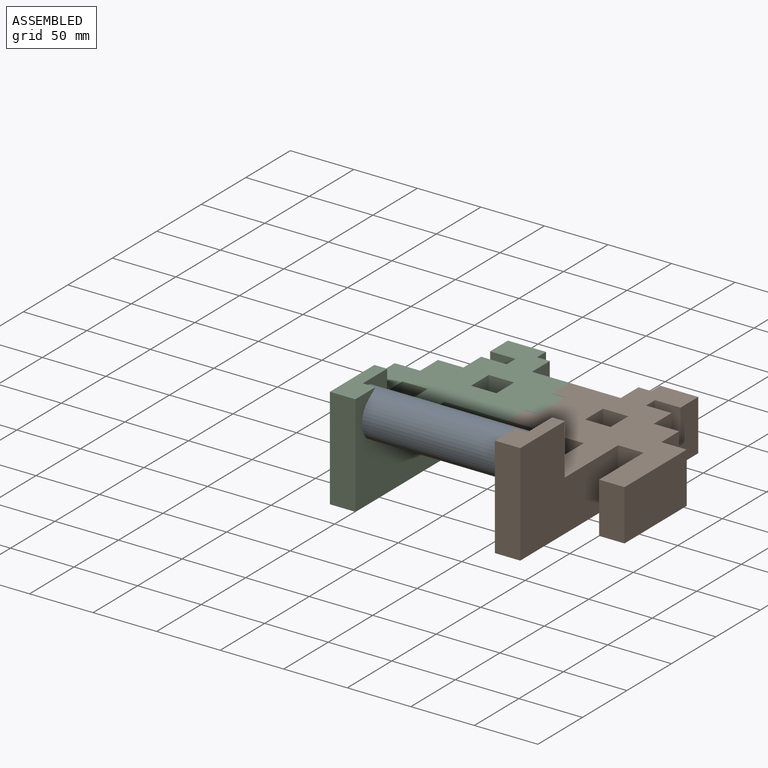
[diagram: assembled view]
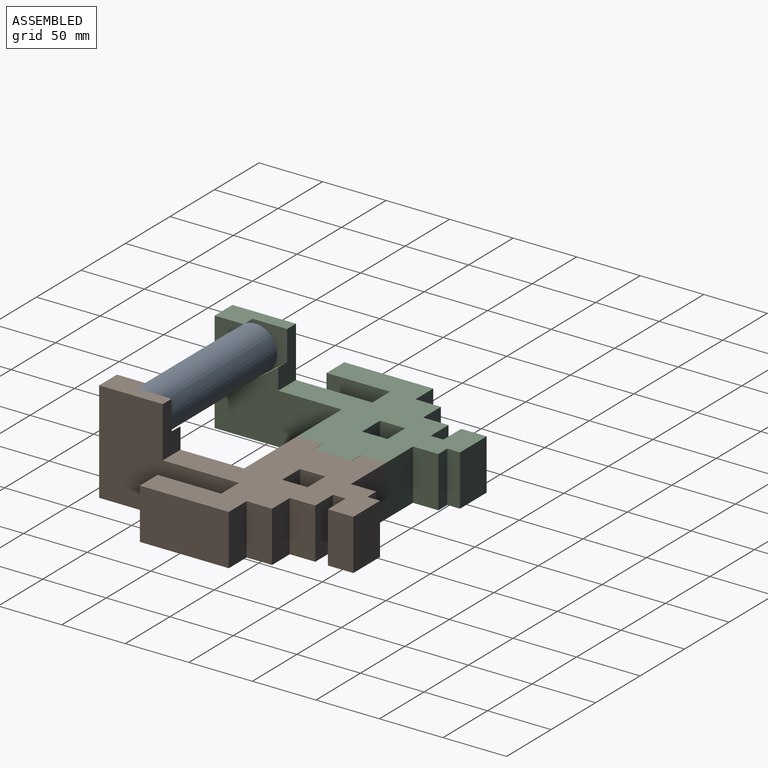
[diagram: assembled view, second angle]
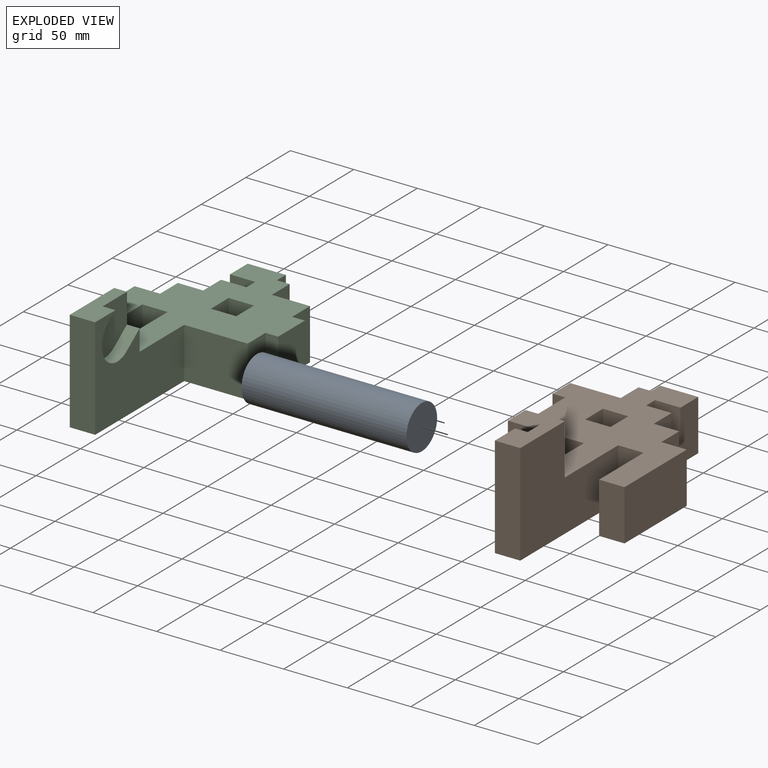
[diagram: exploded view]
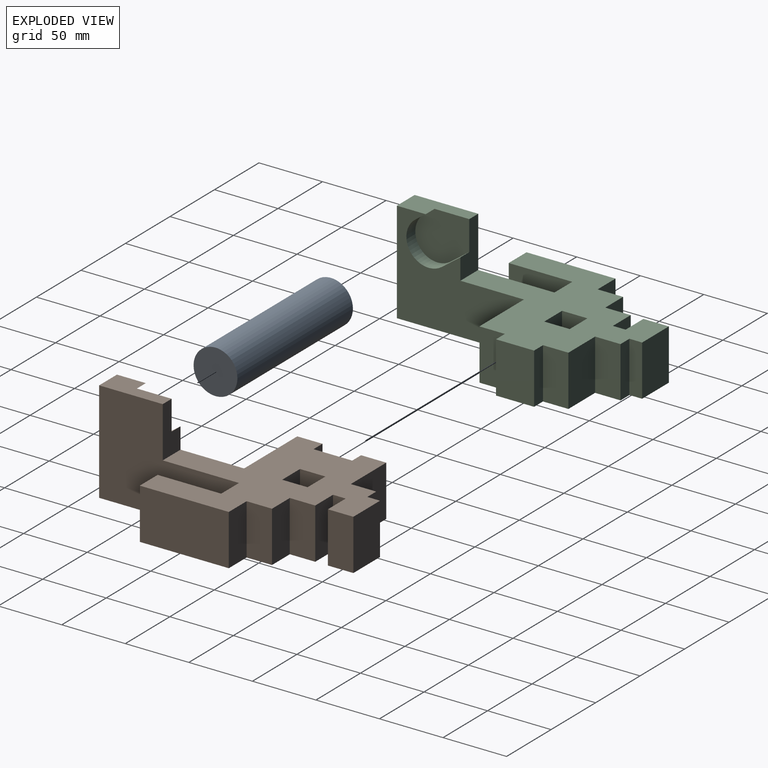
[diagram: exploded view, second angle]
ASSEMBLY  parts=3 mates=2
PART A: 3 faces, bbox 129.8x34.5x34.5 mm
  f0: cylinder r=17.25mm len=129.8mm, axis (-1,0,0), area 14068.4mm2, adj f1,f2
  f1: plane 34.5x34.5mm, normal (1,0,0), area 934.8mm2, adj f0
  f2: plane 34.5x34.5mm, normal (-1,0,0), area 934.8mm2, adj f0
PART B: 47 faces, bbox 119.8x200x80 mm
  f0: plane 200x119.8mm, normal (0,0,-1), area 9892.8mm2, adj f1,f4,f5,f6,f7,f8,f9,f10
  f1: plane 100x80mm, normal (-1,0,0), area 4707.4mm2, adj f0,f2,f3,f5,f22,f33,f34,f35
  f2: plane 50x20mm, normal (0,0,1), area 727mm2, adj f1,f22,f23,f33,f36,f37
  f3: plane 150x119.8mm, normal (0,0,1), area 8982mm2, adj f1,f4,f5,f6,f7,f8,f9,f10
  f4: plane 40x39.8mm, normal (0,1,0), area 1592mm2, adj f0,f3,f21,f31
  f5: plane 59.8x40mm, normal (0,-1,0), area 2392mm2, adj f0,f1,f3,f32
  f6: plane 40x20mm, normal (0,-1,0), area 800mm2, adj f0,f3,f7,f27
  f7: plane 40x20mm, normal (-1,0,0), area 800mm2, adj f0,f3,f6,f8
  f8: plane 40x20mm, normal (0,1,0), area 800mm2, adj f0,f3,f7,f27
  f9: plane 70x40mm, normal (1,0,0), area 2800mm2, adj f0,f3,f10,f26
  f10: plane 40x20mm, normal (0,1,0), area 800mm2, adj f0,f3,f9,f11
  f11: plane 40x20mm, normal (1,0,0), area 800mm2, adj f0,f3,f10,f12
  f12: plane 40x20mm, normal (0,1,0), area 800mm2, adj f0,f3,f11,f13
  f13: plane 40x20mm, normal (1,0,0), area 800mm2, adj f0,f3,f12,f14
  f14: plane 40x20mm, normal (0,1,0), area 800mm2, adj f0,f3,f13,f15
  f15: plane 40x10mm, normal (1,0,0), area 400mm2, adj f0,f3,f14,f16
  f16: plane 40x20mm, normal (0,-1,0), area 800mm2, adj f0,f3,f15,f17
  f17: plane 40x20mm, normal (1,0,0), area 800mm2, adj f0,f3,f16,f18
  f18: plane 40x30mm, normal (0,1,0), area 1200mm2, adj f0,f3,f17,f19
  f19: plane 40x10mm, normal (-1,0,0), area 400mm2, adj f0,f3,f18,f20
  f20: plane 40x10mm, normal (0,1,0), area 400mm2, adj f0,f3,f19,f21
  f21: plane 40x20mm, normal (-1,0,0), area 800mm2, adj f0,f3,f4,f20
  f22: plane 80x20mm, normal (0,-1,0), area 1600mm2, adj f0,f1,f2,f23
  f23: plane 110x80mm, normal (1,0,0), area 6400mm2, adj f0,f2,f3,f22,f24,f33
  f24: plane 40x20mm, normal (0,-1,0), area 800mm2, adj f0,f3,f23,f25
  f25: plane 50x40mm, normal (-1,0,0), area 2000mm2, adj f0,f3,f24,f26
  f26: plane 40x20mm, normal (0,-1,0), area 800mm2, adj f0,f3,f9,f25
  f27: plane 40x20mm, normal (1,0,0), area 800mm2, adj f0,f3,f6,f8
  f28: plane 40x10mm, normal (0,1,0), area 400mm2, adj f0,f3,f29,f32
  f29: plane 40x30.4mm, normal (-1,0,0), area 1216mm2, adj f0,f3,f28,f30
  f30: plane 40x10mm, normal (0,-1,0), area 400mm2, adj f0,f3,f29,f31
  f31: plane 40x19.8mm, normal (-1,0,0), area 792mm2, adj f0,f3,f4,f30
  f32: plane 40x19.8mm, normal (-1,0,0), area 792mm2, adj f0,f3,f5,f28
  f33: plane 40x20mm, normal (0,1,0), area 566.1mm2, adj f1,f2,f3,f23,f35,f37
  f34: cylinder r=17.5mm len=31.62mm, axis (1,0,0), area 549.8mm2, adj f1,f35,f36,f37
  f35: plane 14.67x10.73mm, normal (0,-0.59,0.81), area 181.7mm2, adj f1,f33,f34,f37
  f36: plane 10x8.03mm, normal (0,0.59,-0.81), area 99.5mm2, adj f1,f2,f34,f37
  f37: plane 42.5x37.5mm, normal (-1,0,0), area 1292.6mm2, adj f2,f33,f34,f35,f36
  f38: plane 8.54x2mm, normal (1,0,0), area 17.1mm2, adj f0,f39,f41,f43
  f39: cylinder r=2mm len=4mm, axis (0,0,-1), area 12.6mm2, adj f0,f38,f40,f43
  f40: plane 8.54x2mm, normal (-1,0,0), area 17.1mm2, adj f0,f39,f41,f43
  f41: cylinder r=4mm len=8mm, axis (0,0,-1), area 117.3mm2, adj f0,f38,f40,f42,f43,f44,f45
  f42: plane 20x8mm, normal (0,0,-1), area 146.3mm2, adj f41,f44,f45,f46
  f43: plane 16x8mm, normal (0,0,1), area 57mm2, adj f38,f39,f40,f41,f44,f45,f46
  f44: plane 12x6mm, normal (-1,0,0), area 72mm2, adj f41,f42,f43,f46
  f45: plane 12x6mm, normal (1,0,0), area 72mm2, adj f41,f42,f43,f46
  f46: cylinder r=4mm len=8mm, axis (0,0,1), area 75.4mm2, adj f42,f43,f44,f45
PART C: 47 faces, bbox 120x200x80 mm
  f0: plane 200x120mm, normal (0,0,-1), area 9810.8mm2, adj f3,f4,f5,f6,f7,f8,f9,f10
  f1: plane 50x20mm, normal (0,0,1), area 727mm2, adj f16,f17,f18,f33,f36,f37
  f2: plane 150x120mm, normal (0,0,1), area 8900mm2, adj f3,f4,f5,f6,f7,f8,f9,f10
  f3: plane 40x20mm, normal (0,1,0), area 800mm2, adj f0,f2,f4,f32
  f4: plane 40x20mm, normal (1,0,0), area 800mm2, adj f0,f2,f3,f5
  f5: plane 40x20mm, normal (0,-1,0), area 800mm2, adj f0,f2,f4,f32
  f6: plane 40x10mm, normal (-1,0,0), area 400mm2, adj f0,f2,f7,f31
  f7: plane 40x20mm, normal (0,1,0), area 800mm2, adj f0,f2,f6,f8
  f8: plane 40x20mm, normal (-1,0,0), area 800mm2, adj f0,f2,f7,f9
  f9: plane 40x20mm, normal (0,1,0), area 800mm2, adj f0,f2,f8,f10
  f10: plane 40x20mm, normal (-1,0,0), area 800mm2, adj f0,f2,f9,f11
  f11: plane 40x20mm, normal (0,1,0), area 800mm2, adj f0,f2,f10,f12
  f12: plane 70x40mm, normal (-1,0,0), area 2800mm2, adj f0,f2,f11,f13
  f13: plane 40x20mm, normal (0,-1,0), area 800mm2, adj f0,f2,f12,f14
  f14: plane 50x40mm, normal (1,0,0), area 2000mm2, adj f0,f2,f13,f15
  f15: plane 40x20mm, normal (0,-1,0), area 800mm2, adj f0,f2,f14,f16
  f16: plane 110x80mm, normal (-1,0,0), area 6400mm2, adj f0,f1,f2,f15,f17,f33
  f17: plane 80x20mm, normal (0,-1,0), area 1600mm2, adj f0,f1,f16,f18
  f18: plane 100x80mm, normal (1,0,0), area 4707.4mm2, adj f0,f1,f2,f17,f19,f33,f34,f35
  f19: plane 50x40mm, normal (0,-1,0), area 2000mm2, adj f0,f2,f18,f20
  f20: plane 40x20mm, normal (1,0,0), area 800mm2, adj f0,f2,f19,f21
  f21: plane 40x10mm, normal (0,-1,0), area 400mm2, adj f0,f2,f20,f22
  f22: plane 40x30mm, normal (1,0,0), area 1200mm2, adj f0,f2,f21,f23
  f23: plane 40x10mm, normal (0,1,0), area 400mm2, adj f0,f2,f22,f24
  f24: plane 40x20mm, normal (1,0,0), area 800mm2, adj f0,f2,f23,f25
  f25: plane 40x30mm, normal (0,1,0), area 1200mm2, adj f0,f2,f24,f26
  f26: plane 40x20mm, normal (1,0,0), area 800mm2, adj f0,f2,f25,f27
  f27: plane 40x10mm, normal (0,1,0), area 400mm2, adj f0,f2,f26,f28
  f28: plane 40x10mm, normal (1,0,0), area 400mm2, adj f0,f2,f27,f29
  f29: plane 40x30mm, normal (0,1,0), area 1200mm2, adj f0,f2,f28,f30
  f30: plane 40x20mm, normal (-1,0,0), area 800mm2, adj f0,f2,f29,f31
  f31: plane 40x20mm, normal (0,-1,0), area 800mm2, adj f0,f2,f6,f30
  f32: plane 40x20mm, normal (-1,0,0), area 800mm2, adj f0,f2,f3,f5
  f33: plane 40x20mm, normal (0,1,0), area 566.1mm2, adj f1,f2,f16,f18,f35,f37
  f34: cylinder r=17.5mm len=31.62mm, axis (1,0,0), area 549.8mm2, adj f18,f35,f36,f37
  f35: plane 14.67x10.73mm, normal (0,-0.59,0.81), area 181.7mm2, adj f18,f33,f34,f37
  f36: plane 10x8.03mm, normal (0,0.59,-0.81), area 99.5mm2, adj f1,f18,f34,f37
  f37: plane 42.5x37.5mm, normal (1,0,0), area 1292.6mm2, adj f1,f33,f34,f35,f36
  f38: plane 8.54x2mm, normal (1,0,0), area 17.1mm2, adj f0,f39,f41,f43
  f39: cylinder r=2mm len=4mm, axis (0,0,-1), area 12.6mm2, adj f0,f38,f40,f43
  f40: plane 8.54x2mm, normal (-1,0,0), area 17.1mm2, adj f0,f39,f41,f43
  f41: cylinder r=4mm len=8mm, axis (0,0,-1), area 117.3mm2, adj f0,f38,f40,f42,f43,f44,f45
  f42: plane 20x8mm, normal (0,0,-1), area 146.3mm2, adj f41,f44,f45,f46
  f43: plane 16x8mm, normal (0,0,1), area 57mm2, adj f38,f39,f40,f41,f44,f45,f46
  f44: plane 12x6mm, normal (-1,0,0), area 72mm2, adj f41,f42,f43,f46
  f45: plane 11.99x6mm, normal (1,0,0), area 71.9mm2, adj f41,f42,f43,f46
  f46: cylinder r=4mm len=8mm, axis (0,0,-1), area 75.4mm2, adj f42,f43,f44,f45
PLACE A t=(8.2,0,0)mm
PLACE B at identity
PLACE C t=(20.2,0,0)mm
MATE parallel C.f22 <-> B.f29  axis (1,0,0) through (116.1,49.56,20)mm
MATE revolute A.f0 <-> B.f34  axis (1,0,0) through (175.9,-60.44,60)mm
